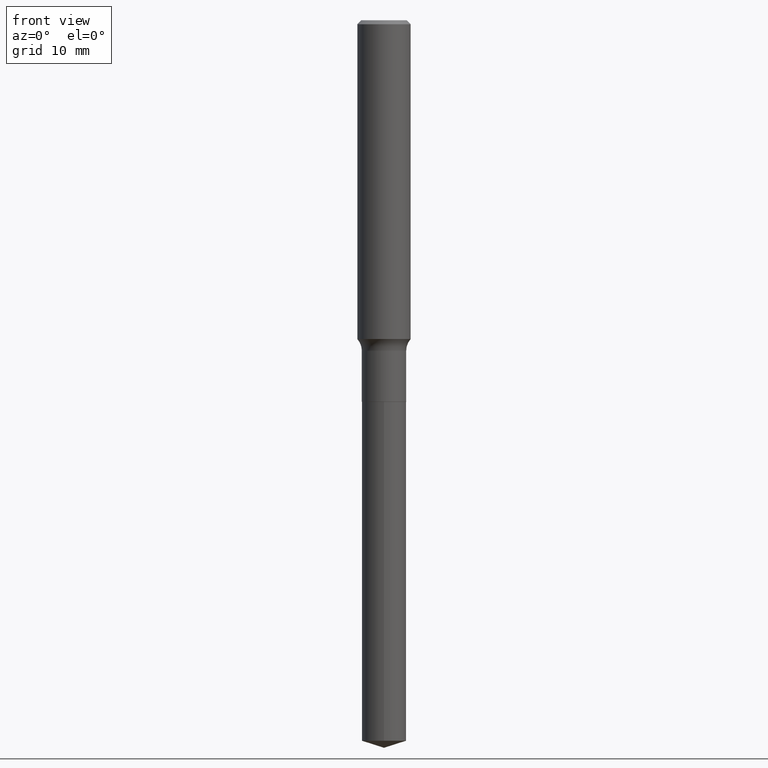
[diagram: clean part render]
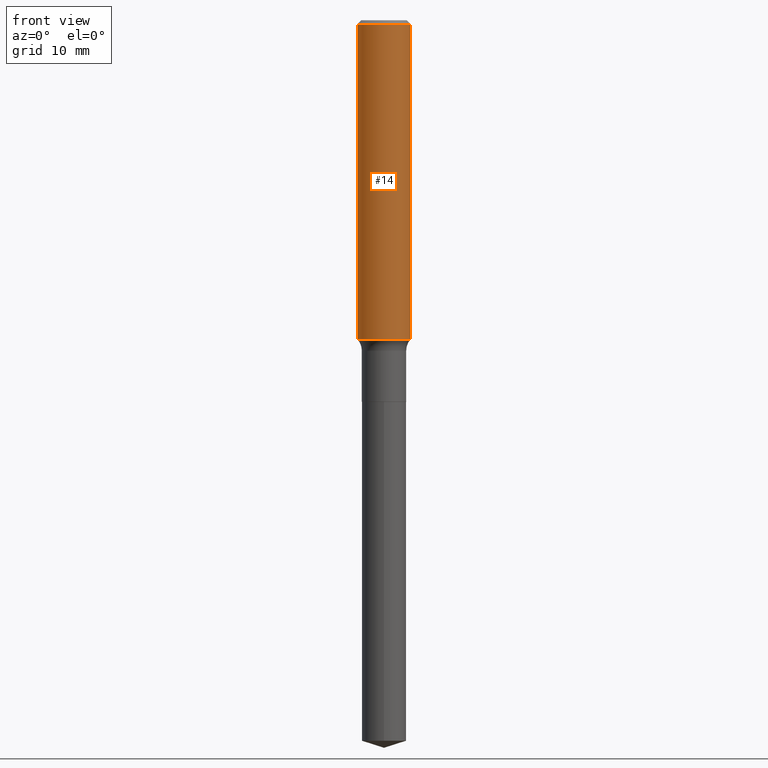
[diagram: same view with one face highlighted and labeled with its STEP entity id]
A machine part, front view. The second image highlights one B-rep face of the part: STEP entity #14.
In plain terms, the highlighted cylindrical surface (edge-blend (fillet) strip) has radius 2.9997 mm, axis along (-0, 0, 1).
Its self-contained STEP definition (entity closure, byte-faithful):
#11 = VECTOR ( 'NONE', #182, 39.37007874015748143 ) ;
#14 = ADVANCED_FACE ( 'NONE', ( #202 ), #322, .T. ) ;
#30 = DIRECTION ( 'NONE',  ( -2.445468806185136877E-29, 3.491481338843145188E-15, 1.000000000000000000 ) ) ;
#36 = DIRECTION ( 'NONE',  ( 1.000000000000000000, -6.982962677686266711E-15, 0.000000000000000000 ) ) ;
#49 = DIRECTION ( 'NONE',  ( -2.445468806185136597E-29, 3.491481338843145583E-15, 1.000000000000000000 ) ) ;
#66 = ORIENTED_EDGE ( 'NONE', *, *, #397, .T. ) ;
#82 = CARTESIAN_POINT ( 'NONE',  ( 0.1181000000000000799, -8.246878922347486570E-16, 5.758764772215004644E-30 ) ) ;
#112 = EDGE_CURVE ( 'NONE', #195, #419, #385, .T. ) ;
#139 = CIRCLE ( 'NONE', #430, 0.1180999999999999966 ) ;
#149 = CARTESIAN_POINT ( 'NONE',  ( 4.332147990156998495E-31, -6.185159191760672860E-17, -0.01771500000000011607 ) ) ;
#160 = LINE ( 'NONE', #82, #298 ) ;
#164 = CARTESIAN_POINT ( 'NONE',  ( 3.459698289128462088E-29, -4.939532241821241999E-15, -1.414738262200733399 ) ) ;
#171 = EDGE_CURVE ( 'NONE', #402, #477, #160, .T. ) ;
#182 = DIRECTION ( 'NONE',  ( -2.445468806185136877E-29, 3.491481338843145188E-15, 1.000000000000000000 ) ) ;
#195 = VERTEX_POINT ( 'NONE', #390 ) ;
#200 = EDGE_CURVE ( 'NONE', #419, #477, #139, .T. ) ;
#202 = FACE_OUTER_BOUND ( 'NONE', #207, .T. ) ;
#207 = EDGE_LOOP ( 'NONE', ( #463, #66, #436, #263 ) ) ;
#211 = CIRCLE ( 'NONE', #406, 0.1181000000000001632 ) ;
#214 = DIRECTION ( 'NONE',  ( 1.000000000000000000, -6.982962677686266711E-15, 4.876176775795936353E-29 ) ) ;
#263 = ORIENTED_EDGE ( 'NONE', *, *, #200, .F. ) ;
#264 = CARTESIAN_POINT ( 'NONE',  ( -0.1181000000000000799, 8.391509709326788873E-16, -5.809262341591047988E-30 ) ) ;
#281 = CARTESIAN_POINT ( 'NONE',  ( -0.1180999999999999966, -1.661540945936744916E-15, -0.01771500000000011607 ) ) ;
#285 = CARTESIAN_POINT ( 'NONE',  ( 0.000000000000000000, 0.000000000000000000, 0.000000000000000000 ) ) ;
#298 = VECTOR ( 'NONE', #30, 39.37007874015748143 ) ;
#316 = CARTESIAN_POINT ( 'NONE',  ( 0.1181000000000001632, -5.764220134055991839E-15, -1.414738262200733399 ) ) ;
#322 = CYLINDRICAL_SURFACE ( 'NONE', #378, 0.1181000000000000799 ) ;
#363 = CARTESIAN_POINT ( 'NONE',  ( 0.1180999999999999966, -8.865394841523548556E-16, -0.01771500000000011607 ) ) ;
#378 = AXIS2_PLACEMENT_3D ( 'NONE', #285, #444, #214 ) ;
#385 = LINE ( 'NONE', #264, #11 ) ;
#390 = CARTESIAN_POINT ( 'NONE',  ( -0.1181000000000001632, -4.100381270888563013E-15, -1.414738262200733399 ) ) ;
#397 = EDGE_CURVE ( 'NONE', #195, #402, #211, .T. ) ;
#402 = VERTEX_POINT ( 'NONE', #316 ) ;
#406 = AXIS2_PLACEMENT_3D ( 'NONE', #164, #49, #443 ) ;
#419 = VERTEX_POINT ( 'NONE', #281 ) ;
#430 = AXIS2_PLACEMENT_3D ( 'NONE', #149, #470, #36 ) ;
#436 = ORIENTED_EDGE ( 'NONE', *, *, #171, .T. ) ;
#443 = DIRECTION ( 'NONE',  ( 1.000000000000000000, -6.982962677686270655E-15, 0.000000000000000000 ) ) ;
#444 = DIRECTION ( 'NONE',  ( -2.445468806185136597E-29, 3.491481338843145583E-15, 1.000000000000000000 ) ) ;
#463 = ORIENTED_EDGE ( 'NONE', *, *, #112, .F. ) ;
#470 = DIRECTION ( 'NONE',  ( -2.445468806185136597E-29, 3.491481338843145583E-15, 1.000000000000000000 ) ) ;
#477 = VERTEX_POINT ( 'NONE', #363 ) ;